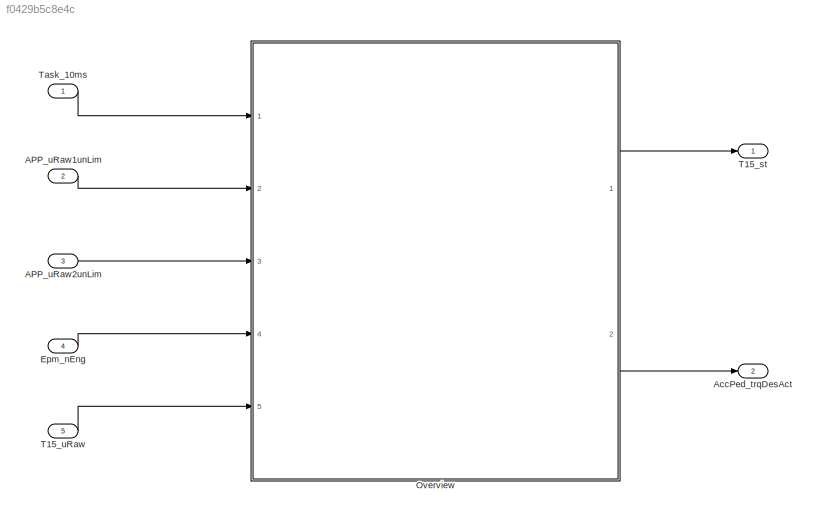
MODEL slx_f0429b5c8e4c
KIND model
CONFIG AbsTol = auto
CONFIG EnableMultiTasking = off
CONFIG FixedStep = auto
CONFIG MaxStep = auto
CONFIG MinStep = auto
CONFIG RelTol = 1e-3
CONFIG SampleTimeConstraint = Unconstrained
CONFIG SolverName = VariableStepAuto
CONFIG StartTime = 0.0
CONFIG StopTime = 10.0
BLOCK [Inport] APP_uRaw1unLim
  Port = 2
BLOCK [Inport] APP_uRaw2unLim
  Port = 3
BLOCK [Outport] AccPed_trqDesAct
  Port = 2
BLOCK [Inport] Epm_nEng
  Port = 4
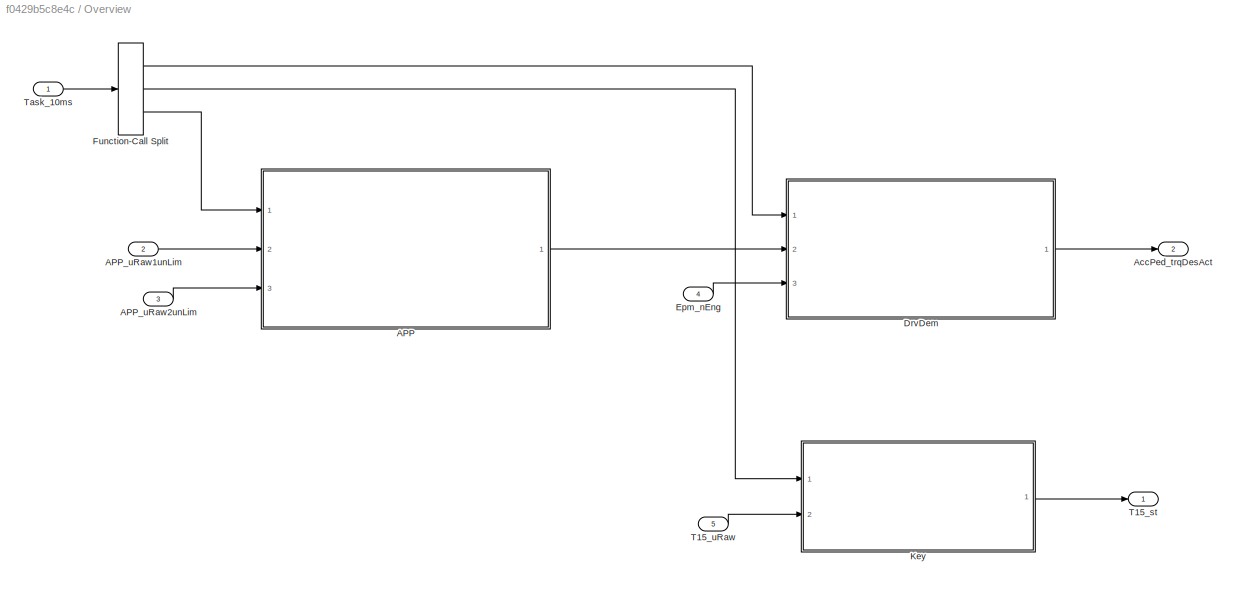
BLOCK [SubSystem] Overview
  Ports = [5, 2]
  RequestExecContextInheritance = off
BLOCK [ModelReference] Overview/APP
  ModelNameDialog = APP
  ModelReferenceVersion = 6.2
  Ports = [3, 1]
  ScheduleRates = on
BLOCK [Inport] Overview/APP_uRaw1unLim
  Port = 2
BLOCK [Inport] Overview/APP_uRaw2unLim
  Port = 3
BLOCK [Outport] Overview/AccPed_trqDesAct
  Port = 2
  VectorParamsAs1DForOutWhenUnconnected = off
BLOCK [ModelReference] Overview/DrvDem
  ModelNameDialog = DrvDem
  ModelReferenceVersion = 6.1
  Ports = [3, 1]
  ScheduleRates = on
BLOCK [Inport] Overview/Epm_nEng
  Port = 4
BLOCK [FunctionCallSplit] Overview/Function-Call Split
  IconShape = distinctive
  NumOutputPorts = 3
  OutputPortLayout = default
  Ports = [1, 3]
BLOCK [ModelReference] Overview/Key
  ModelNameDialog = Key
  ModelReferenceVersion = 6.0
  Ports = [2, 1]
  ScheduleRates = on
BLOCK [Outport] Overview/T15_st
  VectorParamsAs1DForOutWhenUnconnected = off
BLOCK [Inport] Overview/T15_uRaw
  Port = 5
BLOCK [Inport] Overview/Task_10ms
BLOCK [Outport] T15_st
BLOCK [Inport] T15_uRaw
  Port = 5
BLOCK [Inport] Task_10ms
  OutputFunctionCall = on
LINE APP_uRaw1unLim:1 -> Overview:2
LINE APP_uRaw2unLim:1 -> Overview:3
LINE Epm_nEng:1 -> Overview:4
LINE Overview/APP:1 -> Overview/DrvDem:2
LINE Overview/APP_uRaw1unLim:1 -> Overview/APP:2
LINE Overview/APP_uRaw2unLim:1 -> Overview/APP:3
LINE Overview/DrvDem:1 -> Overview/AccPed_trqDesAct:1
LINE Overview/Epm_nEng:1 -> Overview/DrvDem:3
LINE Overview/Function-Call Split:1 -> Overview/DrvDem:1
LINE Overview/Function-Call Split:2 -> Overview/Key:1
LINE Overview/Function-Call Split:3 -> Overview/APP:1
LINE Overview/Key:1 -> Overview/T15_st:1
LINE Overview/T15_uRaw:1 -> Overview/Key:2
LINE Overview/Task_10ms:1 -> Overview/Function-Call Split:1
LINE Overview:1 -> T15_st:1
LINE Overview:2 -> AccPed_trqDesAct:1
LINE T15_uRaw:1 -> Overview:5
LINE Task_10ms:1 -> Overview:1
